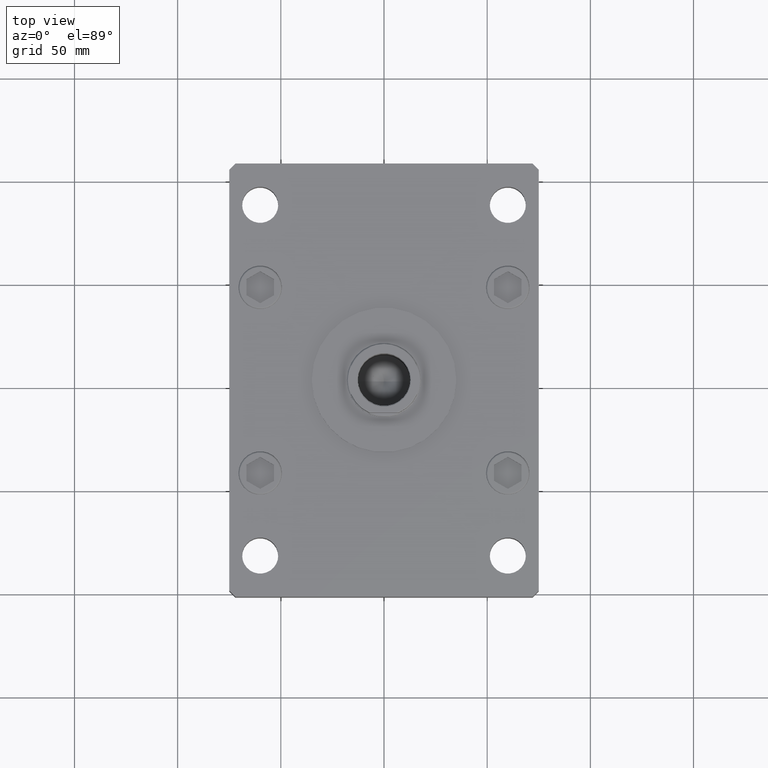
[diagram: clean part render]
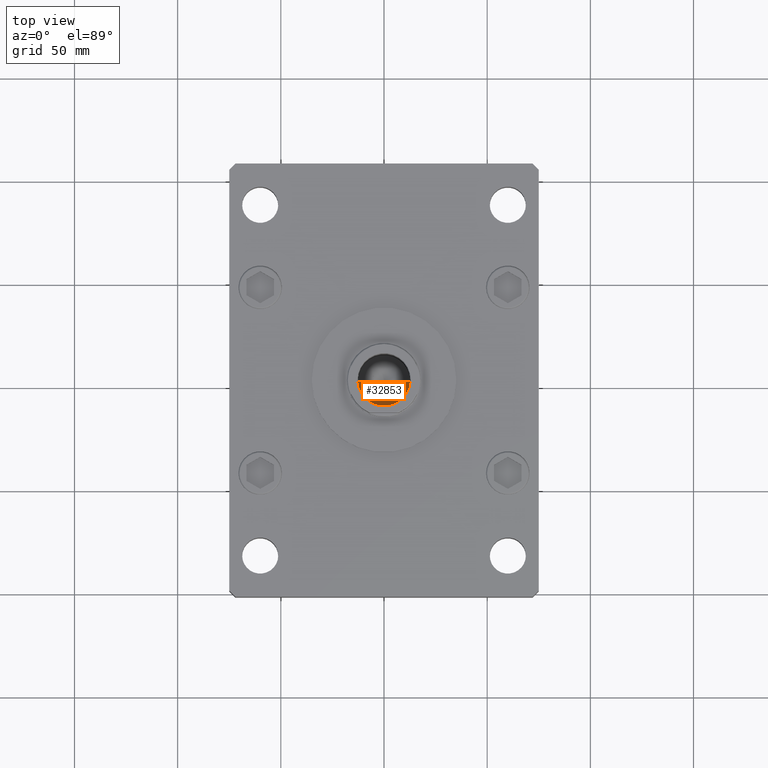
[diagram: same view with one face highlighted and labeled with its STEP entity id]
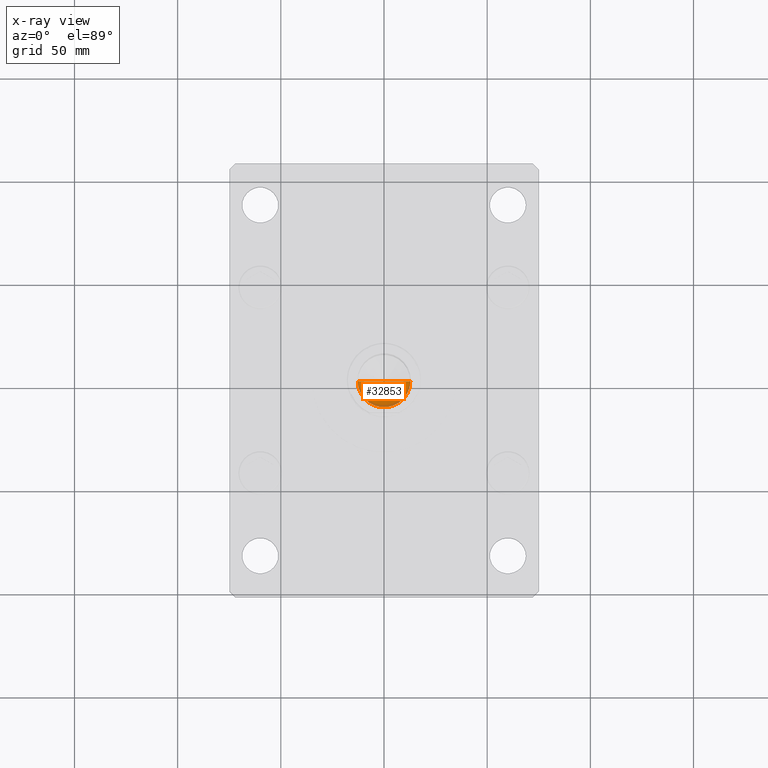
[diagram: x-ray of the same camera — body ghosted, the highlighted face saturated]
A machine part, top view. The second image highlights one B-rep face of the part: STEP entity #32853.
The next image is the same camera in x-ray: the body ghosted, the highlighted face saturated — about 8% of this face is hidden behind the body in this view.
In plain terms, the highlighted conical surface has half-angle 59 deg.
Its self-contained STEP definition (entity closure, byte-faithful):
#690 = DIRECTION ( 'NONE',  ( -0.8571673007021110013, 1.049727191138617093E-16, 0.5150380749100563760 ) ) ;
#2857 = DIRECTION ( 'NONE',  ( 1.000000000000000000, 0.000000000000000000, 0.000000000000000000 ) ) ;
#4554 = AXIS2_PLACEMENT_3D ( 'NONE', #12264, #28668, #2857 ) ;
#5245 = VERTEX_POINT ( 'NONE', #35168 ) ;
#6531 = EDGE_LOOP ( 'NONE', ( #10474, #31091, #50006 ) ) ;
#10474 = ORIENTED_EDGE ( 'NONE', *, *, #13813, .F. ) ;
#10583 = EDGE_CURVE ( 'NONE', #34990, #5245, #21920, .T. ) ;
#12264 = CARTESIAN_POINT ( 'NONE',  ( 0.000000000000000000, 0.000000000000000000, 164.5000000000000284 ) ) ;
#13813 = EDGE_CURVE ( 'NONE', #34990, #47481, #22983, .T. ) ;
#18534 = EDGE_CURVE ( 'NONE', #5245, #47481, #28586, .T. ) ;
#21920 = LINE ( 'NONE', #30256, #39538 ) ;
#22396 = DIRECTION ( 'NONE',  ( 1.000000000000000000, 0.000000000000000000, 0.000000000000000000 ) ) ;
#22983 = LINE ( 'NONE', #47751, #41373 ) ;
#26423 = DIRECTION ( 'NONE',  ( -0.000000000000000000, -0.000000000000000000, 1.000000000000000000 ) ) ;
#28586 = CIRCLE ( 'NONE', #4554, 12.74999999999999112 ) ;
#28668 = DIRECTION ( 'NONE',  ( -0.000000000000000000, -0.000000000000000000, 1.000000000000000000 ) ) ;
#30256 = CARTESIAN_POINT ( 'NONE',  ( -12.74999999999999112, 1.561424668912874125E-15, 164.5000000000000284 ) ) ;
#31091 = ORIENTED_EDGE ( 'NONE', *, *, #10583, .T. ) ;
#32853 = ADVANCED_FACE ( 'NONE', ( #50945 ), #52115, .F. ) ;
#34990 = VERTEX_POINT ( 'NONE', #43074 ) ;
#35168 = CARTESIAN_POINT ( 'NONE',  ( -12.74999999999999112, 1.561424668912874125E-15, 164.5000000000000284 ) ) ;
#35885 = DIRECTION ( 'NONE',  ( 0.8571673007021110013, 0.000000000000000000, 0.5150380749100563760 ) ) ;
#39538 = VECTOR ( 'NONE', #690, 1000.000000000000000 ) ;
#41373 = VECTOR ( 'NONE', #35885, 1000.000000000000000 ) ;
#42664 = AXIS2_PLACEMENT_3D ( 'NONE', #46901, #26423, #22396 ) ;
#43074 = CARTESIAN_POINT ( 'NONE',  ( -1.307202896762960287E-14, 0.000000000000000000, 156.8390271073986071 ) ) ;
#46901 = CARTESIAN_POINT ( 'NONE',  ( 0.000000000000000000, 0.000000000000000000, 164.5000000000000284 ) ) ;
#47481 = VERTEX_POINT ( 'NONE', #51169 ) ;
#47751 = CARTESIAN_POINT ( 'NONE',  ( 12.74999999999999112, 0.000000000000000000, 164.5000000000000284 ) ) ;
#50006 = ORIENTED_EDGE ( 'NONE', *, *, #18534, .T. ) ;
#50945 = FACE_OUTER_BOUND ( 'NONE', #6531, .T. ) ;
#51169 = CARTESIAN_POINT ( 'NONE',  ( 12.74999999999999112, 0.000000000000000000, 164.5000000000000284 ) ) ;
#52115 = CONICAL_SURFACE ( 'NONE', #42664, 12.74999999999999112, 1.029744258676651869 ) ;